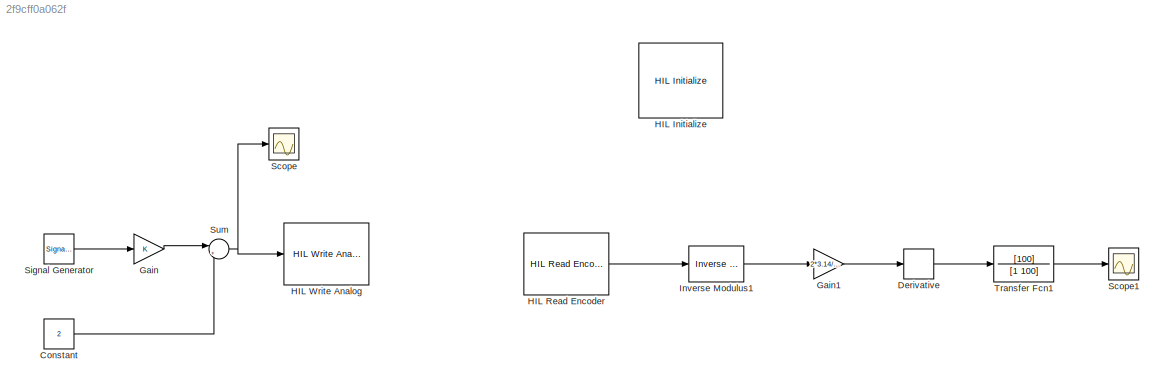
MODEL slx_2f9cff0a062f
KIND model
BLOCK [Constant] Constant
  Value = 2
BLOCK [Derivative] Derivative
BLOCK [Gain] Gain
  OutDataTypeStr = Inherit: Inherit via internal rule
  ParamDataTypeStr = Inherit: Inherit via internal rule
  SaturateOnIntegerOverflow = off
BLOCK [Gain] Gain1
  Gain = 2*3.14/2048
  OutDataTypeStr = Inherit: Inherit via internal rule
  ParamDataTypeStr = Inherit: Inherit via internal rule
  SaturateOnIntegerOverflow = off
BLOCK [Reference] HIL Initialize  REF=quarc_library/Data Acquisition/Generic/Configuration/HIL Initialize
  AttributesFormatString = %<object_name> (%<board_type>-%<board_number>)
  Ports = []
  Priority = -99
  SourceBlock = quarc_library/Data Acquisition/Generic/Configuration/HIL Initialize
  SourceType = HIL Initialize
  UserDataPersistent = on
  active = off
  analog_input_channels = []
  analog_input_maximums = []
  analog_input_minimums = []
  analog_output_channels = [0:1]
  analog_output_maximums = 10
  analog_output_minimums = -10
  board_number = 0
  board_options = d0=pwm;d1=pwm;led=auto;update_rate=normal;decimation=1
  board_type = qube_servo_usb
  clock_modes = []
  digital_input_channels = []
  digital_output_channels = []
  digital_output_configuration = []
  encoder_channels = [0:1]
  encoder_filter_frequency = []
  exclusive = off
  final_analog_outputs = [0]
  final_digital_outputs = []
  final_other_outputs = []
  final_pwm_outputs = []
  hardware_clocks = [0]
  initial_analog_outputs = [0]
  initial_clock_frequencies = []
  initial_digital_outputs = []
  initial_encoder_counts = [0]
  initial_other_outputs = []
  initial_pwm_outputs = []
  object_name = HIL-1
  other_output_channels = []
  pwm_alignment = []
  pwm_channels = []
  pwm_configuration = []
  pwm_frequency = []
  pwm_leading_deadband = []
  pwm_modes = []
  pwm_polarity = []
  pwm_trailing_deadband = []
  quadrature = [4]
  set_analog_input_params_at_start = off
  set_analog_input_params_at_switch_in = off
  set_analog_output_params_at_start = on
  set_analog_output_params_at_switch_in = off
  set_analog_outputs_at_start = on
  set_analog_outputs_at_switch_in = off
  set_analog_outputs_at_switch_out = off
  set_analog_outputs_at_terminate = on
  set_analog_outputs_on_watchdog = off
  set_clock_frequencies_at_start = off
  set_clock_frequencies_at_switch_in = off
  set_clock_params_at_start = off
  set_clock_params_at_switch_in = off
  set_digital_output_params_at_start = off
  set_digital_output_params_at_switch_in = off
  set_digital_outputs_at_start = off
  set_digital_outputs_at_switch_in = off
  set_digital_outputs_at_switch_out = off
  set_digital_outputs_at_terminate = off
  set_digital_outputs_on_watchdog = off
  set_encoder_counts_at_start = on
  set_encoder_counts_at_switch_in = off
  set_encoder_params_at_start = on
  set_encoder_params_at_switch_in = off
  set_other_outputs_at_start = off
  set_other_outputs_at_switch_in = off
  set_other_outputs_at_switch_out = off
  set_other_outputs_at_terminate = off
  set_other_outputs_on_watchdog = off
  set_pwm_outputs_at_start = off
  set_pwm_outputs_at_switch_in = off
  set_pwm_outputs_at_switch_out = off
  set_pwm_outputs_at_terminate = off
  set_pwm_outputs_on_watchdog = off
  set_pwm_params_at_start = off
  set_pwm_params_at_switch_in = off
  watchdog_analog_outputs = 0
  watchdog_digital_outputs = []
  watchdog_other_outputs = []
  watchdog_pwm_outputs = []
BLOCK [Reference] HIL Read Encoder  REF=quarc_library/Data Acquisition/Generic/Immediate I//O/HIL Read Encoder
  AttributesFormatString = (%<object_name>)
  Ports = [0, 1]
  SourceBlock = quarc_library/Data Acquisition/Generic/Immediate I//O/HIL Read Encoder
  SourceType = HIL Read Encoder
  UserDataPersistent = on
  active = on
  channels = 0
  data_type = double
  data_type_mode = Inherit via back propagation
  object_name = HIL-1
  sample_time = qc_get_step_size
  vector_output = off
BLOCK [Reference] HIL Write Analog  REF=quarc_library/Data Acquisition/Generic/Immediate I//O/HIL Write Analog
  AttributesFormatString = (%<object_name>)
  Ports = [1]
  SourceBlock = quarc_library/Data Acquisition/Generic/Immediate I//O/HIL Write Analog
  SourceType = HIL Write Analog
  UserDataPersistent = on
  active = off
  channels = 0
  object_name = HIL-1
  sample_time = -1
  vector_input = off
BLOCK [Reference] Inverse Modulus1  REF=quarc_library/Discontinuities/Inverse
Modulus
  Ports = [1, 1]
  SourceBlock = quarc_library/Discontinuities/Inverse\nModulus
  SourceType = Inverse Modulus
  max_x = Inf
  min_x = -Inf
  modulus = 2^16
  output_derivative = off
  output_revolutions = off
BLOCK [Scope] Scope
  Floating = off
  NumInputPorts = 1
  Ports = [1]
  ShowLegends = off
BLOCK [Scope] Scope1
  Floating = off
  NumInputPorts = 1
  Ports = [1]
  SaveName = ScopeData1
  ShowLegends = off
  YMax = 75
  YMin = 20
BLOCK [SignalGenerator] Signal Generator
  Frequency = 0.4
  Ports = [0, 1]
  WaveForm = square
BLOCK [Sum] Sum
  IconShape = round
  InputSameDT = off
  Inputs = |++
  OutDataTypeStr = Inherit: Inherit via internal rule
  Ports = [2, 1]
  SaturateOnIntegerOverflow = off
BLOCK [TransferFcn] Transfer Fcn1
  Denominator = [1 100]
  Numerator = [100]
LINE Constant:1 -> Sum:2
LINE Derivative:1 -> Transfer Fcn1:1
LINE Gain1:1 -> Derivative:1
LINE Gain:1 -> Sum:1
LINE HIL Read Encoder:1 -> Inverse Modulus1:1
LINE Inverse Modulus1:1 -> Gain1:1
LINE Signal Generator:1 -> Gain:1
NET Sum:1 -> HIL Write Analog:1, Scope:1
LINE Transfer Fcn1:1 -> Scope1:1
note: NET lines group one-source signal fan-out (src -> all destinations, sorted); 1:1 wires keep LINE
